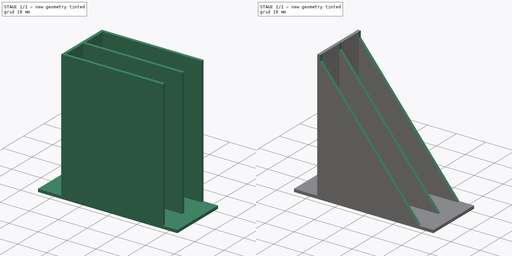
[diagram: build sequence overview — one tinted view per stage of 2, left to right]
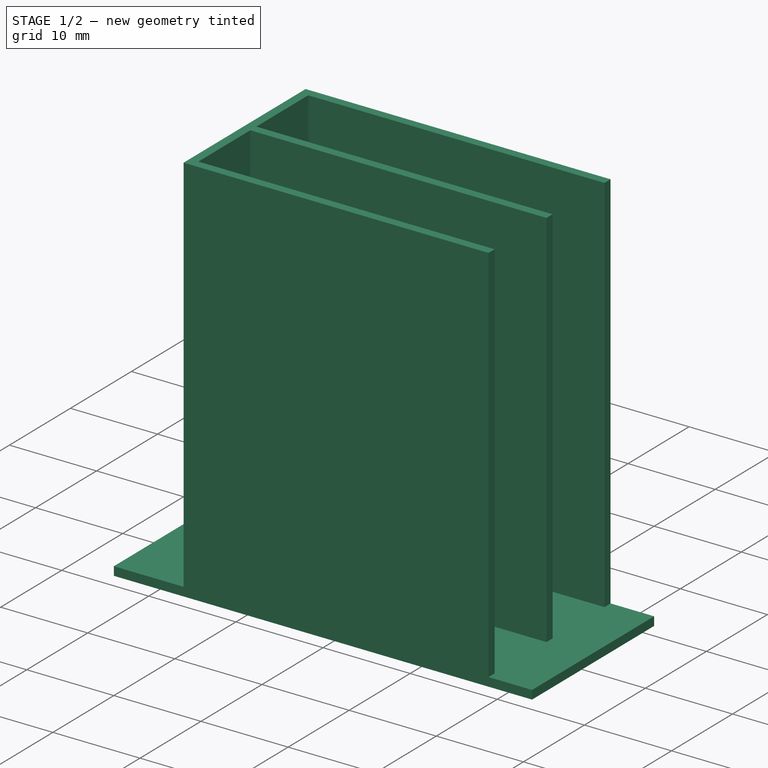
[diagram: stage 1 of 2 — iso view after this stage's code; geometry added in this stage tinted green]
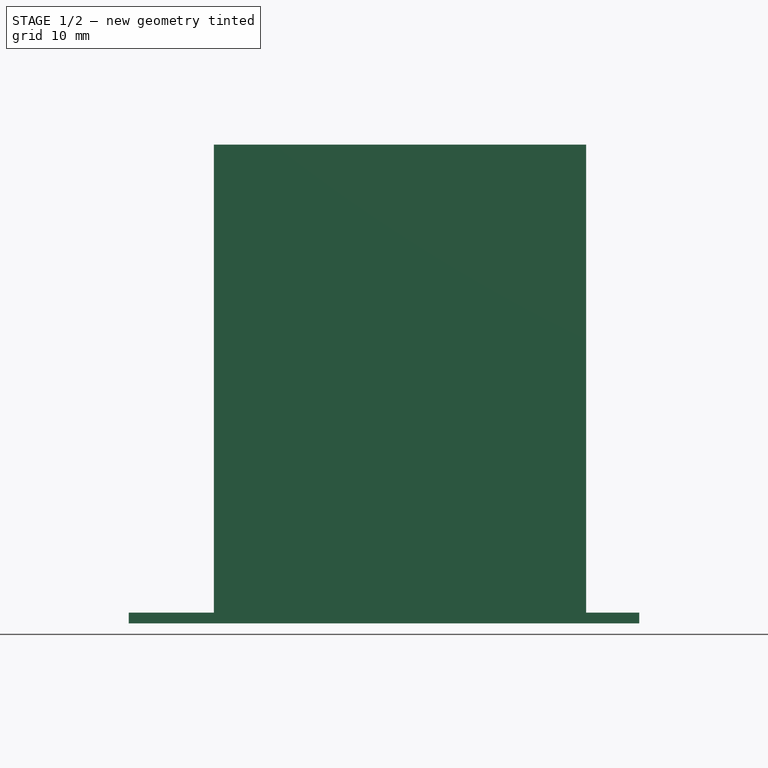
[diagram: stage 1 of 2 — front view after this stage's code; geometry added in this stage tinted green]
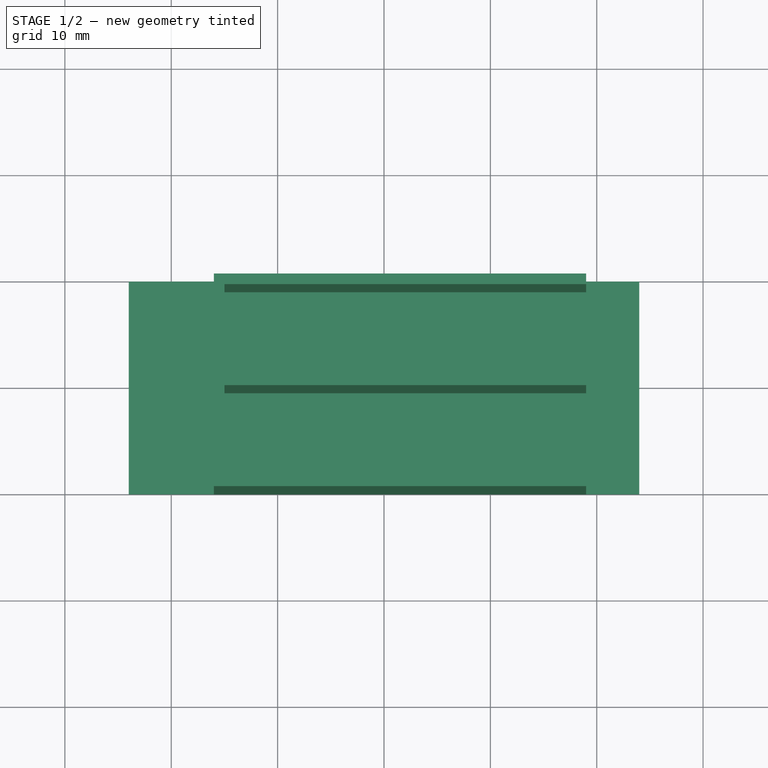
[diagram: stage 1 of 2 — top view after this stage's code; geometry added in this stage tinted green]
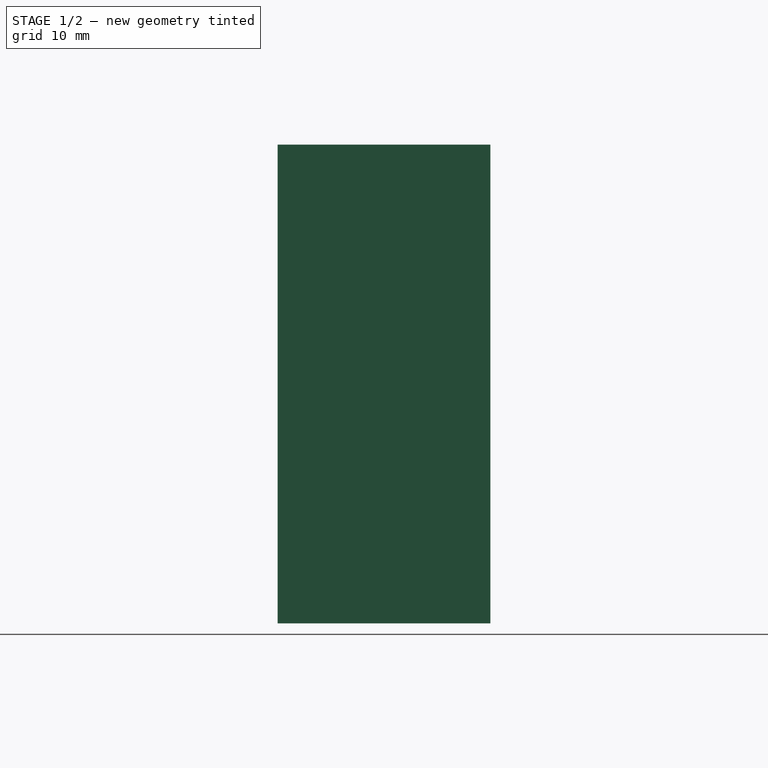
[diagram: stage 1 of 2 — right view after this stage's code; geometry added in this stage tinted green]
FCSTD DOCUMENT  (FreeCAD 0.15R4671 (Git))
Label: esc_clip
License: All rights reserved
LicenseURL: http://en.wikipedia.org/wiki/All_rights_reserved
objects: Sketcher::SketchObject×3, PartDesign::Pad×2, PartDesign::Pocket×1
note: 9 computed .brp shape members not serialized (recipe doc carries the construction recipe); baked Part::Feature solids carry a one-line shape summary decoded from their .brp

FEATURE [Sketcher::SketchObject] Sketch
  sketch-geometry (4):
    g0: LineSegment StartX=-24 StartY=10 StartZ=0 EndX=24 EndY=10 EndZ=0
    g1: LineSegment StartX=24 StartY=10 StartZ=0 EndX=24 EndY=-10 EndZ=0
    g2: LineSegment StartX=24 StartY=-10 StartZ=0 EndX=-24 EndY=-10 EndZ=0
    g3: LineSegment StartX=-24 StartY=-10 StartZ=0 EndX=-24 EndY=10 EndZ=0
  constraints (11):
    c: Coincident(g0,g1)
    c: Coincident(g1,g2)
    c: Coincident(g2,g3)
    c: Coincident(g3,g0)
    c: Horizontal(g0)
    c: Horizontal(g2)
    c: Vertical(g1)
    c: Vertical(g3)
    c: Symmetric(g0,g1,g-1)
    c: DistanceX(g0) = 48
    c: DistanceY(g1) = -20
FEATURE [PartDesign::Pad] Pad
  Length = 1
  Length2 = 100
  Sketch = -> Sketch
  Type = 0
FEATURE [Sketcher::SketchObject] Sketch001
  ExternalGeometry = -> [Pad]
  Placement = pos=(0,0,1) rot=(0,0,1;0rad)
  Support = -> Pad [Face6]
  sketch-geometry (12):
    g0: LineSegment StartX=-16 StartY=10 StartZ=0 EndX=-16 EndY=-10 EndZ=0
    g1: LineSegment StartX=-16 StartY=-10 StartZ=0 EndX=19 EndY=-10 EndZ=0
    g2: LineSegment StartX=19 StartY=-10 StartZ=0 EndX=19 EndY=-9 EndZ=0
    g3: LineSegment StartX=19 StartY=-9 StartZ=0 EndX=-15 EndY=-9 EndZ=0
    g4: LineSegment StartX=-15 StartY=-9 StartZ=0 EndX=-15 EndY=-0.5 EndZ=0
    g5: LineSegment StartX=-15 StartY=-0.5 StartZ=0 EndX=19 EndY=-0.5 EndZ=0
    g6: LineSegment StartX=19 StartY=-0.5 StartZ=0 EndX=19 EndY=0.5 EndZ=0
    g7: LineSegment StartX=19 StartY=0.5 StartZ=0 EndX=-15 EndY=0.5 EndZ=0
    g8: LineSegment StartX=-15 StartY=0.5 StartZ=0 EndX=-15 EndY=9 EndZ=0
    g9: LineSegment StartX=-15 StartY=9 StartZ=0 EndX=19 EndY=9 EndZ=0
    g10: LineSegment StartX=19 StartY=9 StartZ=0 EndX=19 EndY=10 EndZ=0
    g11: LineSegment StartX=19 StartY=10 StartZ=0 EndX=-16 EndY=10 EndZ=0
  constraints (36):
    c: PointOnObject(g0,g-3)
    c: PointOnObject(g0,g-4)
    c: Vertical(g0)
    c: Coincident(g0,g1)
    c: PointOnObject(g1,g-4)
    c: Coincident(g1,g2)
    c: Vertical(g2)
    c: Coincident(g2,g3)
    c: Horizontal(g3)
    c: Coincident(g3,g4)
    c: Vertical(g4)
    c: Coincident(g4,g5)
    c: Horizontal(g5)
    c: Coincident(g5,g6)
    c: Vertical(g6)
    c: Coincident(g6,g7)
    c: Horizontal(g7)
    c: Coincident(g7,g8)
    c: Vertical(g8)
    c: Coincident(g8,g9)
    c: Horizontal(g9)
    c: Coincident(g9,g10)
    c: PointOnObject(g10,g-3)
    c: Vertical(g10)
    c: Coincident(g10,g11)
    c: Coincident(g11,g0)
    c: DistanceY(g6) = 1
    c: DistanceY(g10) = 1
    c: DistanceY(g2) = 1
    c: DistanceX(g3,g0) = -1
    c: DistanceX(g7,g4) = 0
    c: DistanceX(g9,g6) = 0
    c: DistanceX(g5,g2) = 0
    c: DistanceX(g-3,g0) = 8
    c: DistanceX(g0,g10) = 35
    c: DistanceY(g-1,g4) = -0.5
FEATURE [PartDesign::Pad] Pad001
  Length = 44
  Length2 = 100
  Sketch = -> Sketch001
  Type = 0
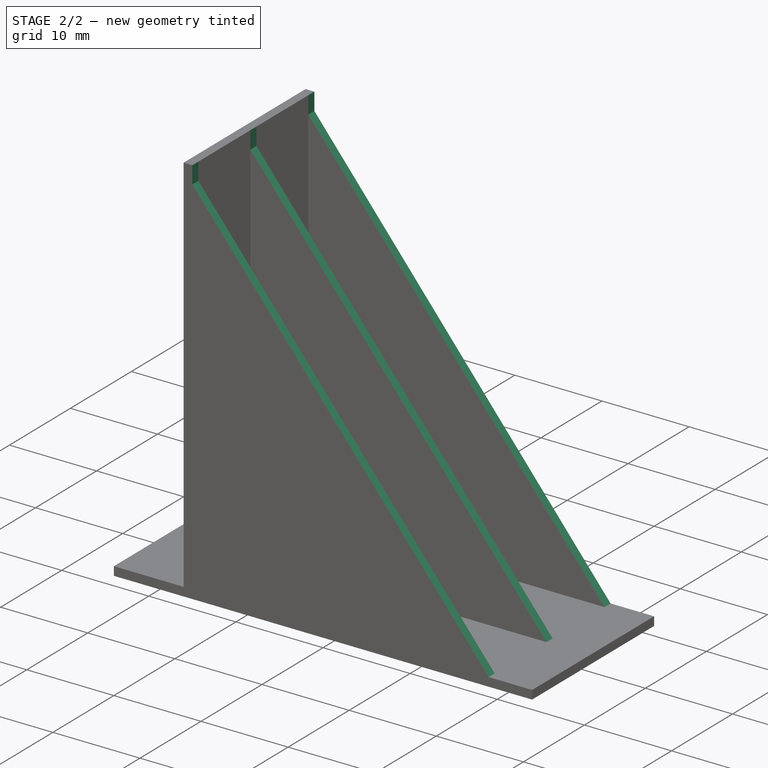
[diagram: stage 2 of 2 — iso view after this stage's code; geometry added in this stage tinted green]
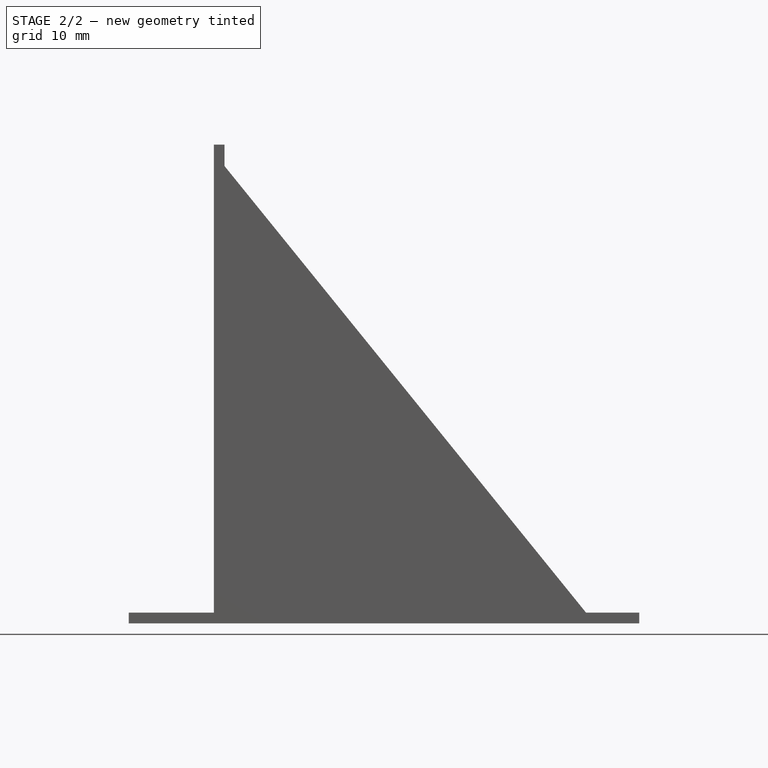
[diagram: stage 2 of 2 — front view after this stage's code; geometry added in this stage tinted green]
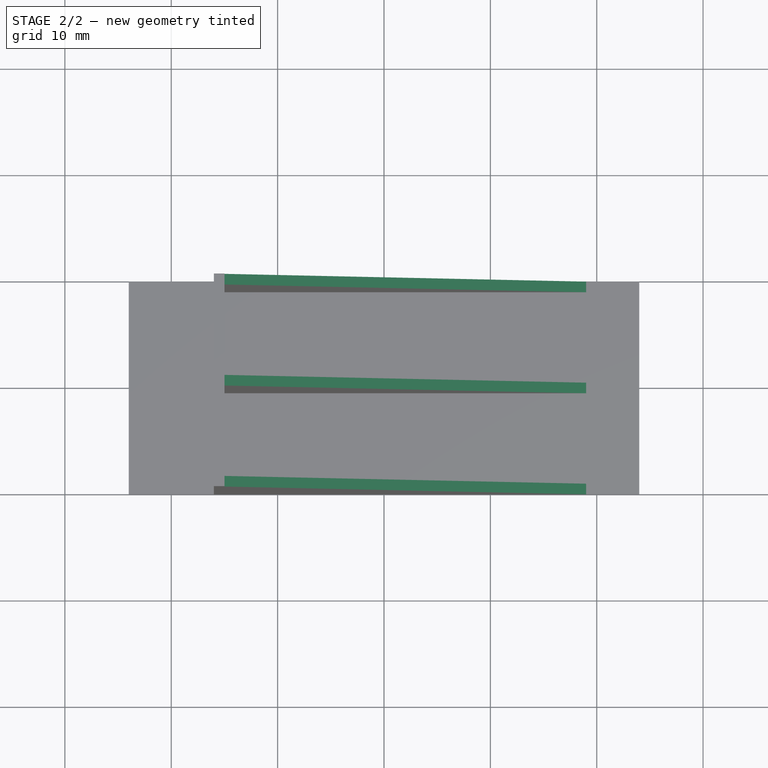
[diagram: stage 2 of 2 — top view after this stage's code; geometry added in this stage tinted green]
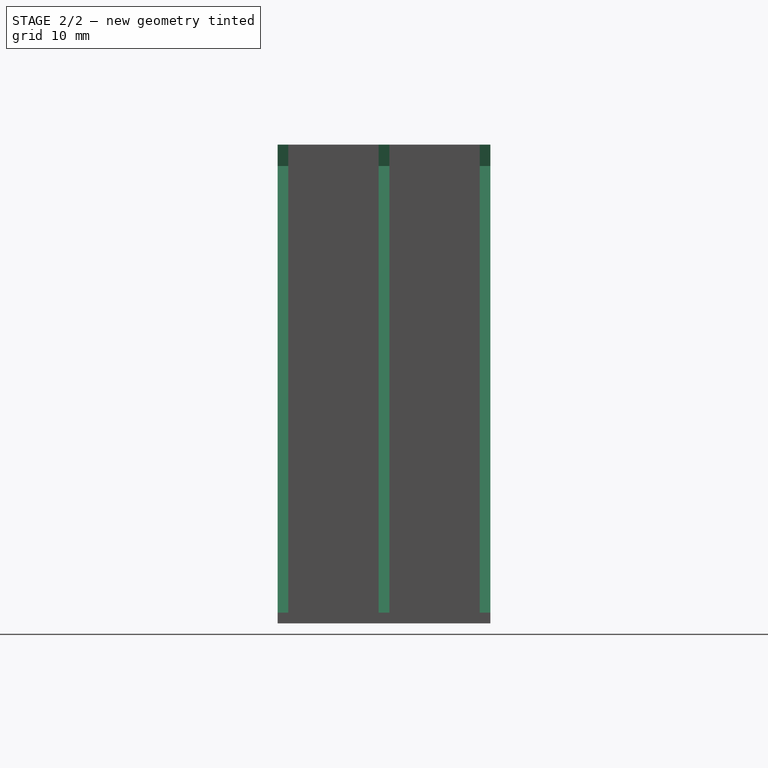
[diagram: stage 2 of 2 — right view after this stage's code; geometry added in this stage tinted green]
FEATURE [Sketcher::SketchObject] Sketch002
  ExternalGeometry = -> [Pad001]
  Placement = pos=(0,-10,0) rot=(1,0,0;1.5708rad)
  Support = -> Pad001 [Face17]
  sketch-geometry (5):
    g0: LineSegment StartX=19 StartY=1 StartZ=0 EndX=-15 EndY=43 EndZ=0
    g1: LineSegment StartX=-15 StartY=43 StartZ=0 EndX=-15 EndY=46 EndZ=0
    g2: LineSegment StartX=-15 StartY=46 StartZ=0 EndX=20 EndY=46 EndZ=0
    g3: LineSegment StartX=20 StartY=46 StartZ=0 EndX=20 EndY=1 EndZ=0
    g4: LineSegment StartX=20 StartY=1 StartZ=0 EndX=19 EndY=1 EndZ=0
  constraints (14):
    c: Coincident(g-4,g0)
    c: Coincident(g0,g1)
    c: Vertical(g1)
    c: Coincident(g1,g2)
    c: Horizontal(g2)
    c: Coincident(g2,g3)
    c: Vertical(g3)
    c: Coincident(g3,g4)
    c: Coincident(g4,g0)
    c: Horizontal(g4)
    c: DistanceX(g1,g-3) = -1
    c: DistanceY(g2,g-4) = -1
    c: DistanceX(g-4,g2) = 1
    c: DistanceY(g0,g-3) = 2
FEATURE [PartDesign::Pocket] Pocket
  Length = 5
  Sketch = -> Sketch002
  Type = 1
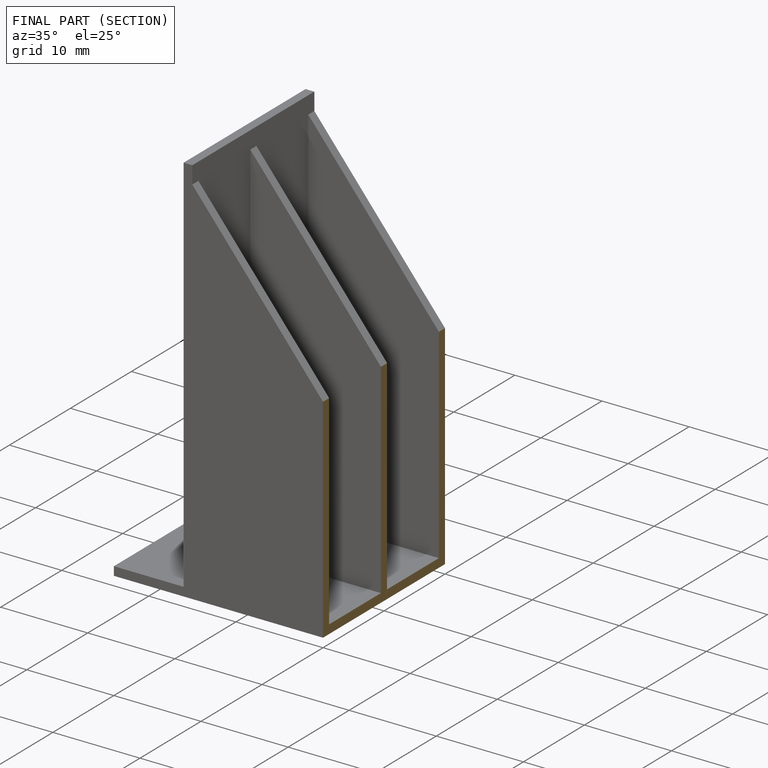
[diagram: finished part — half-section view (interior)]
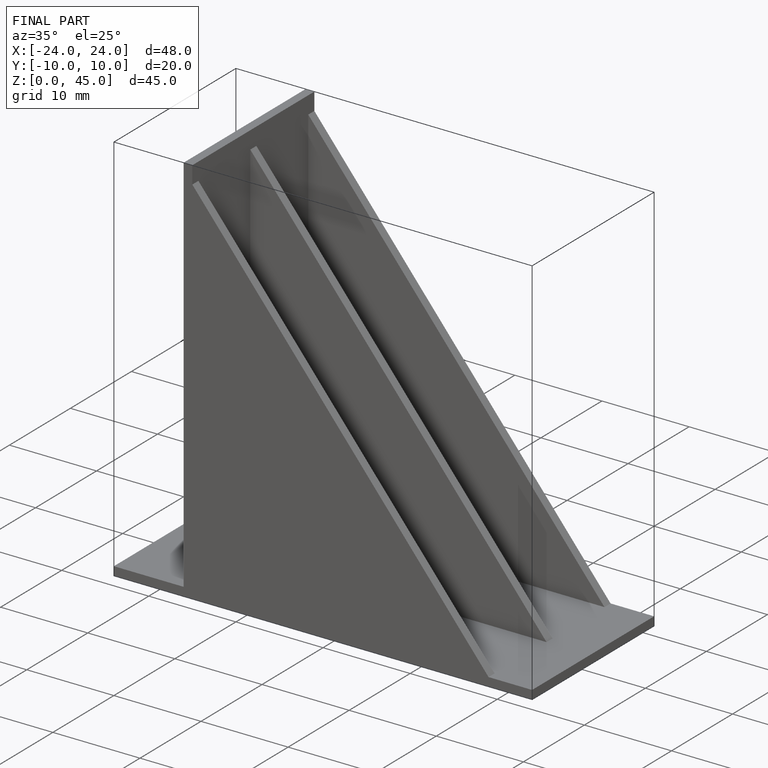
[diagram: finished part — iso view with bounding-box wireframe]
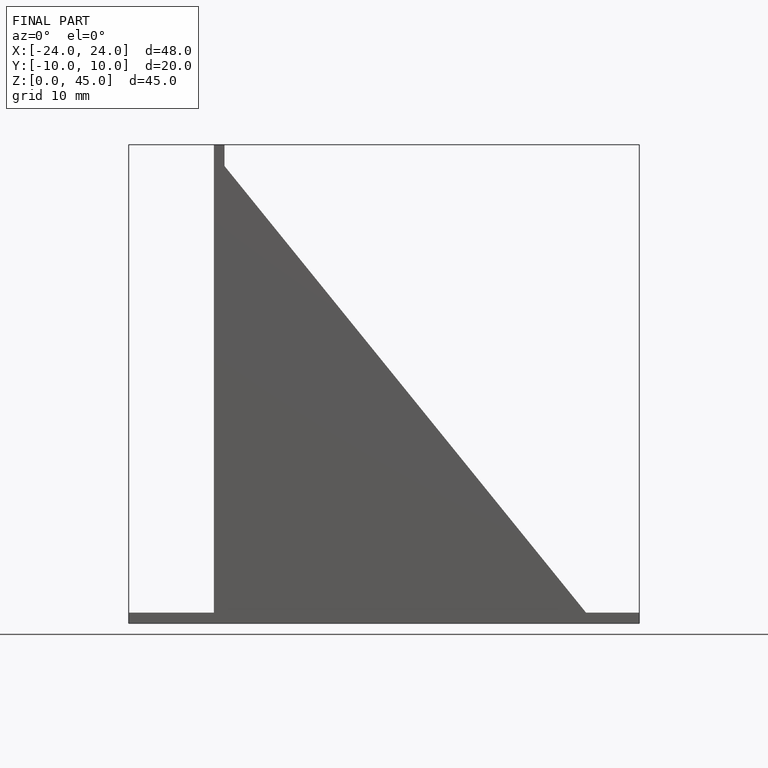
[diagram: finished part — front view with bounding-box wireframe]
